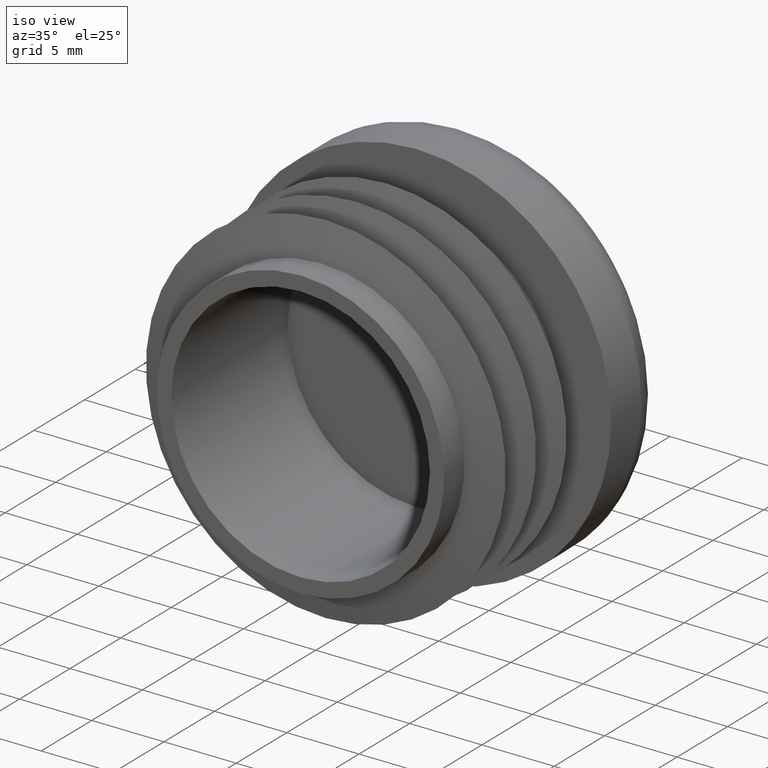
[diagram: clean part render]
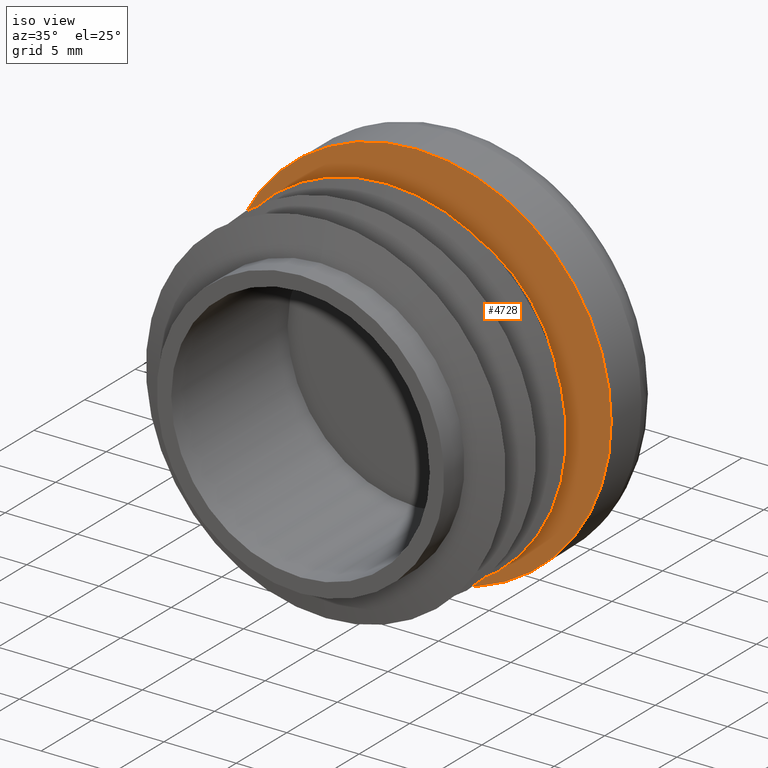
[diagram: same view with one face highlighted and labeled with its STEP entity id]
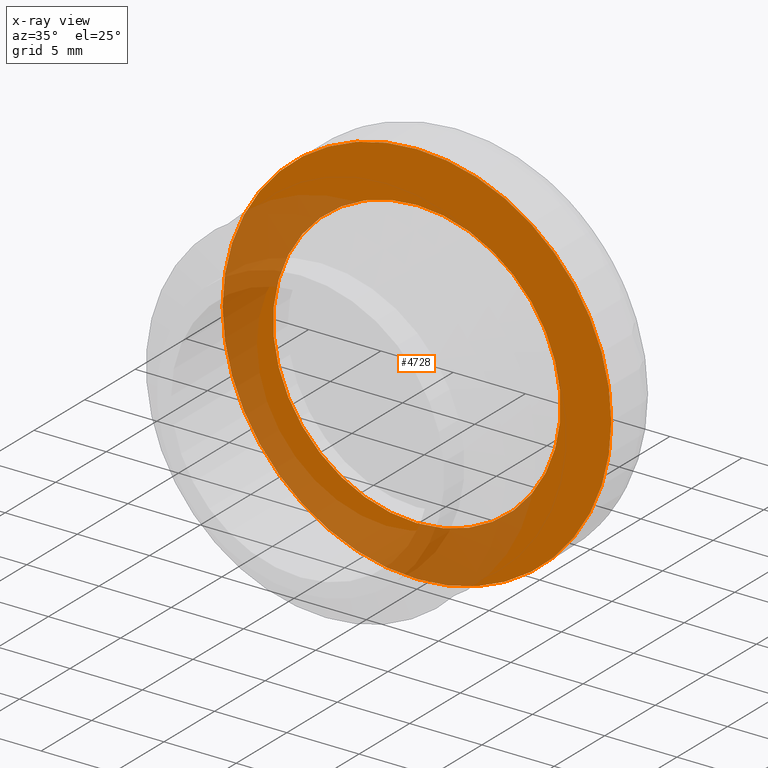
[diagram: x-ray of the same camera — body ghosted, the highlighted face saturated]
A machine part, iso view. The second image highlights one B-rep face of the part: STEP entity #4728.
The next image is the same camera in x-ray: the body ghosted, the highlighted face saturated — about 37% of this face is hidden behind the body in this view.
In plain terms, the highlighted planar face has unit normal (0, 1, 0).
Its self-contained STEP definition (entity closure, byte-faithful):
#92 = EDGE_LOOP ( 'NONE', ( #5491, #5663 ) ) ;
#227 = DIRECTION ( 'NONE',  ( 0.0000000000000000000, 0.0000000000000000000, 1.000000000000000000 ) ) ;
#234 = DIRECTION ( 'NONE',  ( -0.0000000000000000000, -1.000000000000000000, -0.0000000000000000000 ) ) ;
#282 = CARTESIAN_POINT ( 'NONE',  ( 0.0000000000000000000, 0.0000000000000000000, 9.949999999999999300 ) ) ;
#568 = FACE_OUTER_BOUND ( 'NONE', #3992, .T. ) ;
#594 = EDGE_CURVE ( 'NONE', #5992, #7904, #4849, .T. ) ;
#683 = EDGE_CURVE ( 'NONE', #6134, #3269, #7494, .T. ) ;
#782 = DIRECTION ( 'NONE',  ( 0.0000000000000000000, 1.000000000000000000, 0.0000000000000000000 ) ) ;
#1962 = CARTESIAN_POINT ( 'NONE',  ( 0.0000000000000000000, 0.0000000000000000000, -13.44999999999999900 ) ) ;
#2068 = AXIS2_PLACEMENT_3D ( 'NONE', #7410, #3724, #8053 ) ;
#2321 = CARTESIAN_POINT ( 'NONE',  ( 0.0000000000000000000, 0.0000000000000000000, 0.0000000000000000000 ) ) ;
#2409 = ORIENTED_EDGE ( 'NONE', *, *, #8237, .F. ) ;
#3269 = VERTEX_POINT ( 'NONE', #6967 ) ;
#3458 = DIRECTION ( 'NONE',  ( 0.0000000000000000000, 0.0000000000000000000, 1.000000000000000000 ) ) ;
#3466 = DIRECTION ( 'NONE',  ( 0.0000000000000000000, 1.000000000000000000, 0.0000000000000000000 ) ) ;
#3476 = CARTESIAN_POINT ( 'NONE',  ( 0.0000000000000000000, 0.0000000000000000000, 0.0000000000000000000 ) ) ;
#3724 = DIRECTION ( 'NONE',  ( 0.0000000000000000000, 1.000000000000000000, 0.0000000000000000000 ) ) ;
#3759 = CARTESIAN_POINT ( 'NONE',  ( 1.218523565151616400E-015, 0.0000000000000000000, -9.949999999999999300 ) ) ;
#3914 = DIRECTION ( 'NONE',  ( -0.0000000000000000000, -1.000000000000000000, -0.0000000000000000000 ) ) ;
#3992 = EDGE_LOOP ( 'NONE', ( #5624, #2409 ) ) ;
#4194 = FACE_BOUND ( 'NONE', #92, .T. ) ;
#4399 = EDGE_CURVE ( 'NONE', #7904, #5992, #7388, .T. ) ;
#4634 = AXIS2_PLACEMENT_3D ( 'NONE', #2321, #234, #227 ) ;
#4728 = ADVANCED_FACE ( 'NONE', ( #568, #4194 ), #7462, .F. ) ;
#4849 = CIRCLE ( 'NONE', #4634, 9.949999999999999300 ) ;
#4851 = CARTESIAN_POINT ( 'NONE',  ( 0.0000000000000000000, 0.0000000000000000000, 0.0000000000000000000 ) ) ;
#5417 = AXIS2_PLACEMENT_3D ( 'NONE', #7628, #3914, #8221 ) ;
#5491 = ORIENTED_EDGE ( 'NONE', *, *, #4399, .F. ) ;
#5534 = DIRECTION ( 'NONE',  ( 0.0000000000000000000, 0.0000000000000000000, 1.000000000000000000 ) ) ;
#5624 = ORIENTED_EDGE ( 'NONE', *, *, #683, .F. ) ;
#5663 = ORIENTED_EDGE ( 'NONE', *, *, #594, .F. ) ;
#5682 = CIRCLE ( 'NONE', #6631, 13.44999999999999900 ) ;
#5992 = VERTEX_POINT ( 'NONE', #3759 ) ;
#6134 = VERTEX_POINT ( 'NONE', #1962 ) ;
#6631 = AXIS2_PLACEMENT_3D ( 'NONE', #4851, #782, #5534 ) ;
#6967 = CARTESIAN_POINT ( 'NONE',  ( 1.647149944853190000E-015, 0.0000000000000000000, 13.44999999999999900 ) ) ;
#7093 = AXIS2_PLACEMENT_3D ( 'NONE', #3476, #3466, #3458 ) ;
#7388 = CIRCLE ( 'NONE', #5417, 9.949999999999999300 ) ;
#7410 = CARTESIAN_POINT ( 'NONE',  ( 0.0000000000000000000, 0.0000000000000000000, 0.0000000000000000000 ) ) ;
#7462 = PLANE ( 'NONE',  #2068 ) ;
#7494 = CIRCLE ( 'NONE', #7093, 13.44999999999999900 ) ;
#7628 = CARTESIAN_POINT ( 'NONE',  ( 0.0000000000000000000, 0.0000000000000000000, 0.0000000000000000000 ) ) ;
#7904 = VERTEX_POINT ( 'NONE', #282 ) ;
#8053 = DIRECTION ( 'NONE',  ( 0.0000000000000000000, -0.0000000000000000000, 1.000000000000000000 ) ) ;
#8221 = DIRECTION ( 'NONE',  ( 0.0000000000000000000, 0.0000000000000000000, 1.000000000000000000 ) ) ;
#8237 = EDGE_CURVE ( 'NONE', #3269, #6134, #5682, .T. ) ;